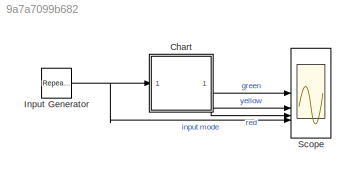
MODEL slx_9a7a7099b682
KIND model
CONFIG AbsTol = auto
CONFIG EnableMultiTasking = off
CONFIG FixedStep = auto
CONFIG MaxStep = auto
CONFIG MinStep = auto
CONFIG RelTol = 1e-3
CONFIG SampleTimeConstraint = Unconstrained
CONFIG SolverName = VariableStepAuto
CONFIG StartTime = 0.0
CONFIG StopTime = 100
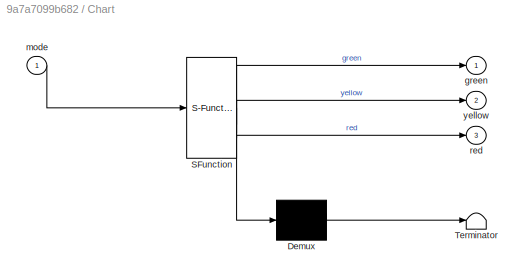
BLOCK [SubSystem] Chart
  ErrorFcn = Stateflow.Translate.translate
  PermitHierarchicalResolution = ExplicitOnly
  SFBlockType = Chart
  TreatAsAtomicUnit = on
BLOCK [Demux] Chart/ Demux 
  Outputs = 1
BLOCK [S-Function] Chart/ SFunction 
  EnableBusSupport = on
  FunctionName = sf_sfun
  PortCounts = [1 4]
  SFcnIsStateOwnerBlock = off
  SFunctionDeploymentMode = off
  Tag = Stateflow S-Function 3
BLOCK [Terminator] Chart/ Terminator 
BLOCK [Outport] Chart/green
BLOCK [Inport] Chart/mode
BLOCK [Outport] Chart/red
  Port = 3
BLOCK [Outport] Chart/yellow
  Port = 2
BLOCK [Reference] Input Generator  REF=simulink/Sources/Repeating
Sequence
Stair
  LibrarySourceBlock = hdlsllib/Sources/Repeating\nSequence\nStair
  SourceBlock = simulink/Sources/Repeating\nSequence\nStair
  SourceType = Repeating Sequence Stair
BLOCK [Scope] Scope
  Floating = off
  NumInputPorts = 4
  ScopeSpecificationString = Simulink.scopes.TimeScopeBlockCfg('CurrentConfiguration', extmgr.ConfigurationSet(extmgr.Configuration('Core','General UI',true,'DisplayFullSourceName',true),extmgr.Configuration('Core','Source UI',true),extmgr.Configuration('Sources','WiredSimulink',true),extmgr.Configuration('Visuals','Time Domain',true,'SerializedDisplays',{struct('MinYLimReal','-0.125','MaxYLimReal','1.125','YLabelReal','','Mi...<+4592ch>
LINE Chart:1 -> Scope:1
LINE Chart:2 -> Scope:2
LINE Chart:3 -> Scope:3
NET Input Generator:1 -> Chart:1, Scope:4
note: NET lines group one-source signal fan-out (src -> all destinations, sorted); 1:1 wires keep LINE
CHART Chart states=8 transitions=16
  STATE_LABEL 'Off\nentry:\ngreen = 0;\nred = 0;\nyellow = 0;'
  STATE_LABEL 'Override\n'
  STATE_LABEL 'Red\nentry:\nred = 1;\nyellow = 0;\ngreen = 0;\n'
  STATE_LABEL 'Off\nentry:\ngreen = 0;\nred = 0;\nyellow = 0;'
  STATE_LABEL 'after(1, sec)'
  STATE_LABEL 'after(1, sec)'
  STATE_LABEL 'Red\nentry:\nred = 1;\nyellow = 0;\ngreen = 0;\n'
  STATE_LABEL 'Off\nentry:\ngreen = 0;\nred = 0;\nyellow = 0;'
  STATE_LABEL 'Normal\n'
  STATE_LABEL 'Green\nentry:\ngreen = 1;\nred = 0;\nyellow = 0;'
  STATE_LABEL 'Yellow\nentry:\ngreen = 0;\nred = 0;\nyellow = 1;'
  STATE_LABEL 'Red\nentry:\ngreen = 0;\nred = 1;\nyellow = 0;'
  STATE_LABEL 'after(3, sec)'
  STATE_LABEL 'after(3, sec)'
  STATE_LABEL 'after(1, sec)'
  STATE_LABEL 'Green\nentry:\ngreen = 1;\nred = 0;\nyellow = 0;'
  STATE_LABEL 'Yellow\nentry:\ngreen = 0;\nred = 0;\nyellow = 1;'
  STATE_LABEL 'Red\nentry:\ngreen = 0;\nred = 1;\nyellow = 0;'
CHART  states=0 transitions=0
